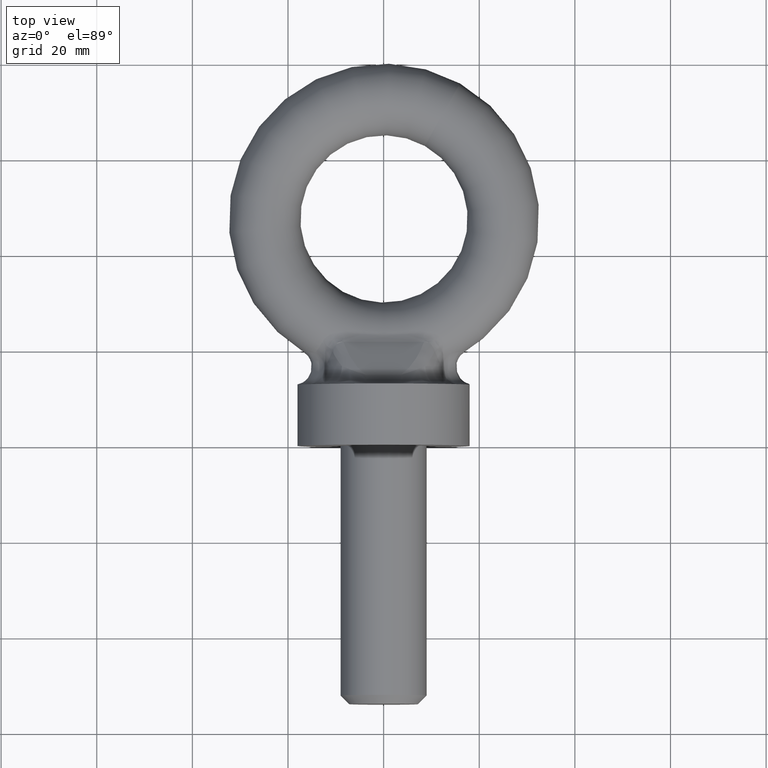
[diagram: clean part render]
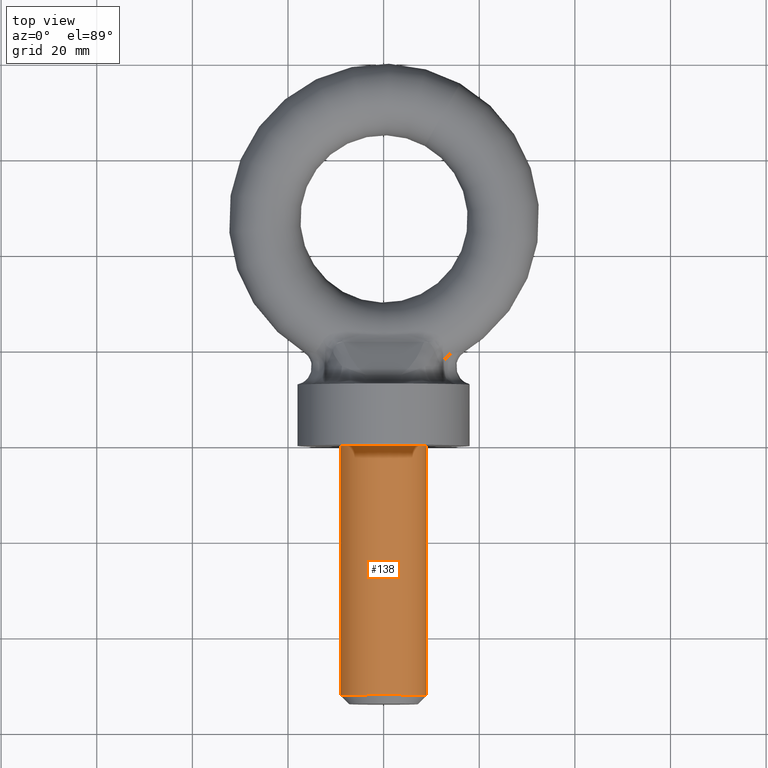
[diagram: same view with one face highlighted and labeled with its STEP entity id]
A machine part, top view. The second image highlights one B-rep face of the part: STEP entity #138.
In plain terms, the highlighted cylindrical surface (bore or boss wall) has radius 9 mm, axis along (-0, 1, 0).
Its self-contained STEP definition (entity closure, byte-faithful):
#80=FACE_BOUND('',#228,.T.);
#81=FACE_BOUND('',#229,.T.);
#92=CYLINDRICAL_SURFACE('',#701,9.);
#138=ADVANCED_FACE('',(#80,#81),#92,.T.);
#228=EDGE_LOOP('',(#359));
#229=EDGE_LOOP('',(#360));
#359=ORIENTED_EDGE('',*,*,#581,.T.);
#360=ORIENTED_EDGE('',*,*,#582,.F.);
#519=VERTEX_POINT('',#1181);
#520=VERTEX_POINT('',#1183);
#581=EDGE_CURVE('',#519,#519,#640,.T.);
#582=EDGE_CURVE('',#520,#520,#641,.T.);
#640=CIRCLE('',#699,9.);
#641=CIRCLE('',#700,8.99999999999999);
#699=AXIS2_PLACEMENT_3D('',#1180,#806,#807);
#700=AXIS2_PLACEMENT_3D('',#1182,#808,#809);
#701=AXIS2_PLACEMENT_3D('',#1184,#810,#811);
#806=DIRECTION('',(-3.58976547520618E-18,1.,0.));
#807=DIRECTION('',(-1.,0.,0.));
#808=DIRECTION('',(-3.58976547520617E-18,1.,0.));
#809=DIRECTION('',(-1.,-3.58976547520617E-18,0.));
#810=DIRECTION('',(-3.58976547520617E-18,1.,0.));
#811=DIRECTION('',(-1.,0.,0.));
#1180=CARTESIAN_POINT('',(2.68155480997901E-16,-52.2,0.));
#1181=CARTESIAN_POINT('',(-9.,-52.2,0.));
#1182=CARTESIAN_POINT('',(8.07697231921387E-17,0.,0.));
#1183=CARTESIAN_POINT('',(-8.99999999999999,-3.23078892768555E-17,0.));
#1184=CARTESIAN_POINT('',(2.74617058853272E-16,-54.,0.));